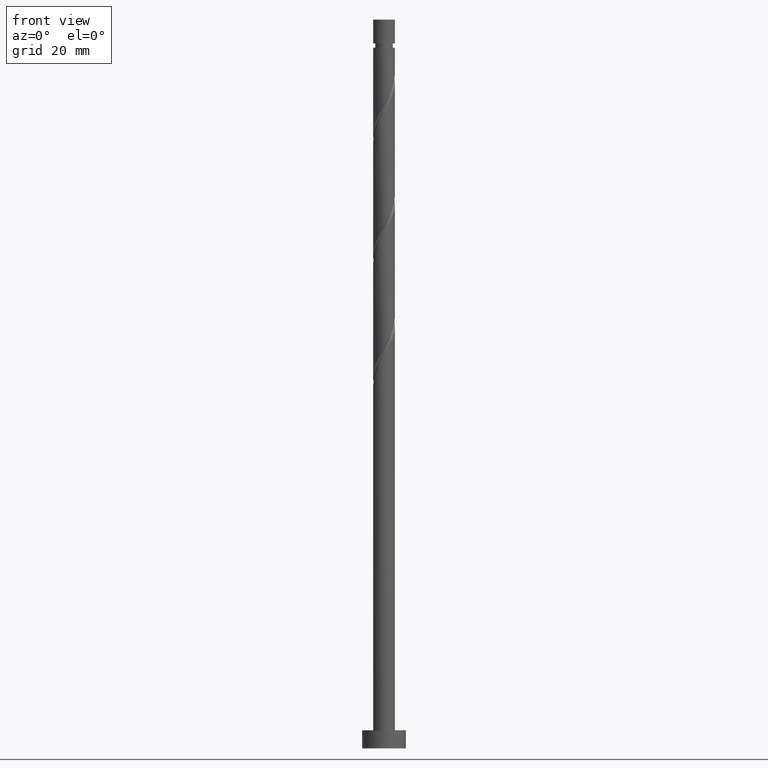
[diagram: clean part render]
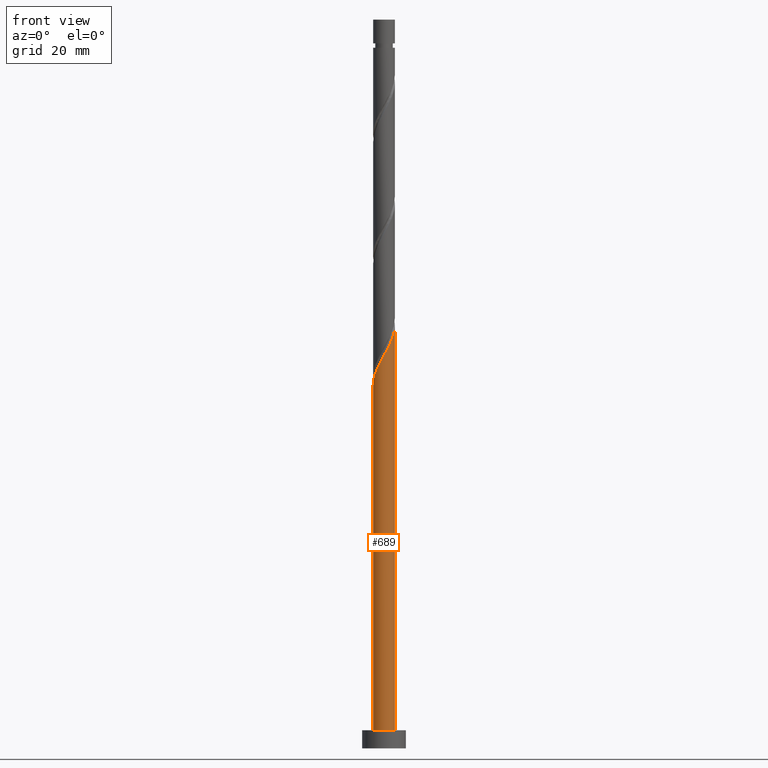
[diagram: same view with one face highlighted and labeled with its STEP entity id]
A machine part, front view. The second image highlights one B-rep face of the part: STEP entity #689.
In plain terms, the highlighted cylindrical surface (edge-blend (fillet) strip) has radius 3 mm, axis along (-0, -0, -1).
Its self-contained STEP definition (entity closure, byte-faithful):
#103 = CARTESIAN_POINT ( 'NONE',  ( -1.327489493864653092, -2.719147488601526774, 105.4562600412176465 ) ) ;
#111 = CARTESIAN_POINT ( 'NONE',  ( 1.337578430002083651, -2.685308910273301652, 110.3173711523287892 ) ) ;
#129 = VERTEX_POINT ( 'NONE', #368 ) ;
#142 = DIRECTION ( 'NONE',  ( -0.000000000000000000, -0.000000000000000000, -1.000000000000000000 ) ) ;
#213 = DIRECTION ( 'NONE',  ( 0.000000000000000000, 0.000000000000000000, 1.000000000000000000 ) ) ;
#236 = CARTESIAN_POINT ( 'NONE',  ( -0.1842775552007402673, -2.994334948306428323, 107.5395933745510035 ) ) ;
#243 = CARTESIAN_POINT ( 'NONE',  ( 1.987010638188423606, -2.247618455994267794, 111.7062600412176323 ) ) ;
#247 = EDGE_CURVE ( 'NONE', #1201, #1452, #350, .T. ) ;
#252 = CARTESIAN_POINT ( 'NONE',  ( 2.501031355072560469, -1.656756518304344894, 113.0951489301065465 ) ) ;
#260 = CARTESIAN_POINT ( 'NONE',  ( -3.000000000000003997, -8.523657132863393773E-16, 99.53158227489647913 ) ) ;
#310 = FACE_OUTER_BOUND ( 'NONE', #1189, .T. ) ;
#350 = CIRCLE ( 'NONE', #1368, 3.000000000000000444 ) ;
#368 = CARTESIAN_POINT ( 'NONE',  ( 3.000000000000003997, -9.869497732789193205E-16, 116.1982489415631505 ) ) ;
#380 = EDGE_CURVE ( 'NONE', #129, #1452, #1006, .T. ) ;
#393 = CARTESIAN_POINT ( 'NONE',  ( -0.9529893618115806708, -2.844610918258239085, 106.1507044856621036 ) ) ;
#404 =( BOUNDED_CURVE ( )  B_SPLINE_CURVE ( 2, ( #260, #916, #541, #1088, #1623, #933, #1725, #1457, #508, #103, #393, #1471, #236, #792, #1596, #1206, #111, #1343, #243, #1476, #252, #1326, #656, #941, #1749, #1193, #662 ),
 .UNSPECIFIED., .F., .T. ) 
 B_SPLINE_CURVE_WITH_KNOTS ( ( 3, 2, 2, 2, 2, 2, 2, 2, 2, 2, 2, 2, 2, 3 ),
 ( 0.05453176698144635015, 0.06250000000000000000, 0.07291666666666662966, 0.08333333333333337034, 0.09375000000000000000, 0.1041666666666666297, 0.1145833333333333703, 0.1250000000000000000, 0.1354166666666666297, 0.1458333333333333703, 0.1562500000000000000, 0.1666666666666666297, 0.1770833333333333703, 0.1795317669814464057 ),
 .UNSPECIFIED. ) 
 CURVE ( )  GEOMETRIC_REPRESENTATION_ITEM ( )  RATIONAL_B_SPLINE_CURVE ( ( 0.9062941362546503843, 0.9031415850403545775, 0.9090909090909301549, 0.9013135103398484116, 0.9090909090909301549, 0.9013135103398484116, 0.9090909090909301549, 0.9013135103398484116, 0.9090909090909301549, 0.9013135103398484116, 0.9090909090909301549, 0.9013135103398484116, 0.9090909090909301549, 0.9013135103398484116, 0.9090909090909301549, 0.9013135103398484116, 0.9090909090909301549, 0.9013135103398484116, 0.9090909090909301549, 0.9013135103398484116, 0.9090909090909301549, 0.9013135103398484116, 0.9090909090909301549, 0.9013135103398484116, 0.9090909090909301549, 0.9072628343904237669, 0.9062941362546503843 ) ) 
 REPRESENTATION_ITEM ( '' )  );
#446 = ORIENTED_EDGE ( 'NONE', *, *, #247, .T. ) ;
#457 = CARTESIAN_POINT ( 'NONE',  ( 3.000000000000000444, 3.673940397442060361E-16, 200.0000000000000000 ) ) ;
#508 = CARTESIAN_POINT ( 'NONE',  ( -1.656756518304343784, -2.501031355072560469, 104.7618155967732037 ) ) ;
#541 = CARTESIAN_POINT ( 'NONE',  ( -2.940000000000004832, -0.5969924622639717349, 100.5951489301065607 ) ) ;
#656 = CARTESIAN_POINT ( 'NONE',  ( 2.844610918258239085, -0.9529893618115807818, 114.4840378189954180 ) ) ;
#662 = CARTESIAN_POINT ( 'NONE',  ( 3.000000000000003997, -9.869497732789193205E-16, 116.1982489415631647 ) ) ;
#689 = ADVANCED_FACE ( 'NONE', ( #310 ), #931, .T. ) ;
#717 = ORIENTED_EDGE ( 'NONE', *, *, #1344, .T. ) ;
#792 = CARTESIAN_POINT ( 'NONE',  ( 0.2099341193570265773, -3.018595548697905251, 108.2340378189954322 ) ) ;
#916 = CARTESIAN_POINT ( 'NONE',  ( -3.000000000000004441, -0.3015113445777640178, 100.0650086440857507 ) ) ;
#931 = CYLINDRICAL_SURFACE ( 'NONE', #944, 3.000000000000000444 ) ;
#933 = CARTESIAN_POINT ( 'NONE',  ( -2.509213369244499781, -1.691106054833252381, 102.6784822634398893 ) ) ;
#941 = CARTESIAN_POINT ( 'NONE',  ( 2.970074347914952284, -0.5784892297585086940, 115.1784822634399035 ) ) ;
#944 = AXIS2_PLACEMENT_3D ( 'NONE', #1205, #1747, #1340 ) ;
#946 = VECTOR ( 'NONE', #142, 1000.000000000000000 ) ;
#1006 = LINE ( 'NONE', #457, #1603 ) ;
#1024 = EDGE_CURVE ( 'NONE', #1159, #129, #404, .T. ) ;
#1088 = CARTESIAN_POINT ( 'NONE',  ( -2.861404451302104412, -0.9840508051709158099, 101.2895933745509893 ) ) ;
#1106 = CARTESIAN_POINT ( 'NONE',  ( -3.000000000000000444, 0.000000000000000000, 5.000000000000000000 ) ) ;
#1125 = CARTESIAN_POINT ( 'NONE',  ( -3.000000000000003997, -8.523657132863393773E-16, 99.53158227489647913 ) ) ;
#1159 = VERTEX_POINT ( 'NONE', #1125 ) ;
#1172 = ORIENTED_EDGE ( 'NONE', *, *, #380, .F. ) ;
#1183 = CARTESIAN_POINT ( 'NONE',  ( 0.000000000000000000, 0.000000000000000000, 5.000000000000000000 ) ) ;
#1189 = EDGE_LOOP ( 'NONE', ( #1172, #1192, #717, #446 ) ) ;
#1192 = ORIENTED_EDGE ( 'NONE', *, *, #1024, .F. ) ;
#1193 = CARTESIAN_POINT ( 'NONE',  ( 3.000000000000003997, -0.09222585497302043800, 116.0350852535350157 ) ) ;
#1201 = VERTEX_POINT ( 'NONE', #1106 ) ;
#1205 = CARTESIAN_POINT ( 'NONE',  ( 0.000000000000000000, 0.000000000000000000, 200.0000000000000000 ) ) ;
#1206 = CARTESIAN_POINT ( 'NONE',  ( 0.9840508051709156989, -2.861404451302104412, 109.6229267078843606 ) ) ;
#1231 = CARTESIAN_POINT ( 'NONE',  ( 3.000000000000000444, 3.673940397442060361E-16, 5.000000000000000000 ) ) ;
#1265 = LINE ( 'NONE', #1643, #946 ) ;
#1326 = CARTESIAN_POINT ( 'NONE',  ( 2.719147488601526330, -1.327489493864653092, 113.7895933745509751 ) ) ;
#1340 = DIRECTION ( 'NONE',  ( -1.000000000000000000, 0.000000000000000000, 0.000000000000000000 ) ) ;
#1343 = CARTESIAN_POINT ( 'NONE',  ( 1.691106054833251715, -2.509213369244499781, 111.0118155967732179 ) ) ;
#1344 = EDGE_CURVE ( 'NONE', #1159, #1201, #1265, .T. ) ;
#1368 = AXIS2_PLACEMENT_3D ( 'NONE', #1183, #213, #1711 ) ;
#1452 = VERTEX_POINT ( 'NONE', #1231 ) ;
#1457 = CARTESIAN_POINT ( 'NONE',  ( -1.986023542744036696, -2.282915221543595941, 104.0673711523287892 ) ) ;
#1471 = CARTESIAN_POINT ( 'NONE',  ( -0.5784892297585071397, -2.970074347914953172, 106.8451489301065465 ) ) ;
#1476 = CARTESIAN_POINT ( 'NONE',  ( 2.282915221543595941, -1.986023542744036696, 112.4007044856620752 ) ) ;
#1596 = CARTESIAN_POINT ( 'NONE',  ( 0.5969924622639716238, -2.940000000000004832, 108.9284822634398751 ) ) ;
#1603 = VECTOR ( 'NONE', #1641, 1000.000000000000000 ) ;
#1623 = CARTESIAN_POINT ( 'NONE',  ( -2.685308910273300764, -1.337578430002084540, 101.9840378189954606 ) ) ;
#1641 = DIRECTION ( 'NONE',  ( -0.000000000000000000, -0.000000000000000000, -1.000000000000000000 ) ) ;
#1643 = CARTESIAN_POINT ( 'NONE',  ( -3.000000000000000444, 0.000000000000000000, 200.0000000000000000 ) ) ;
#1711 = DIRECTION ( 'NONE',  ( 1.000000000000000000, 0.000000000000000000, 0.000000000000000000 ) ) ;
#1725 = CARTESIAN_POINT ( 'NONE',  ( -2.247618455994267350, -1.987010638188423606, 103.3729267078843037 ) ) ;
#1747 = DIRECTION ( 'NONE',  ( -0.000000000000000000, -0.000000000000000000, -1.000000000000000000 ) ) ;
#1749 = CARTESIAN_POINT ( 'NONE',  ( 2.994334948306428323, -0.1842775552007417939, 115.8729267078843179 ) ) ;